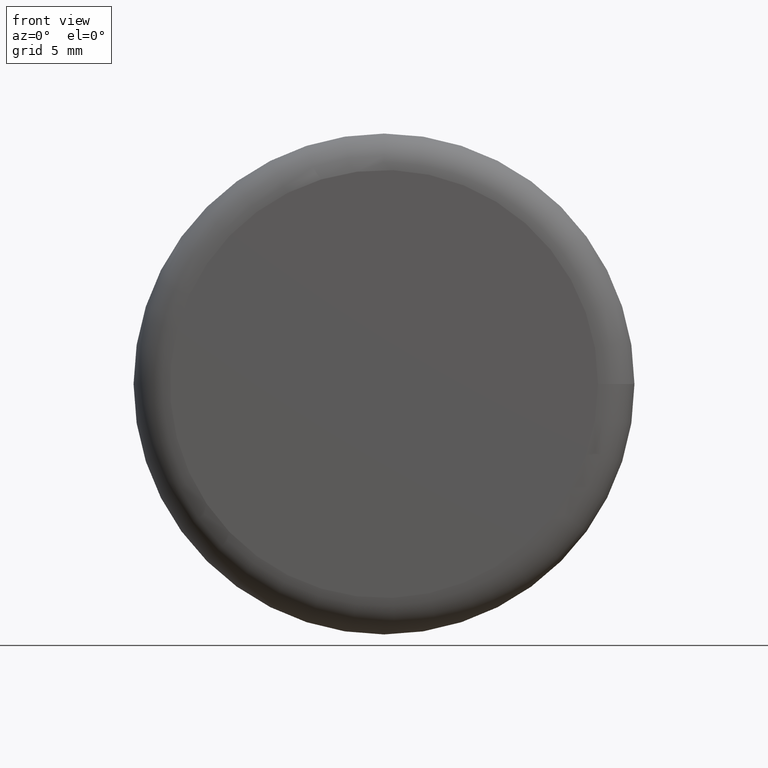
[diagram: clean part render]
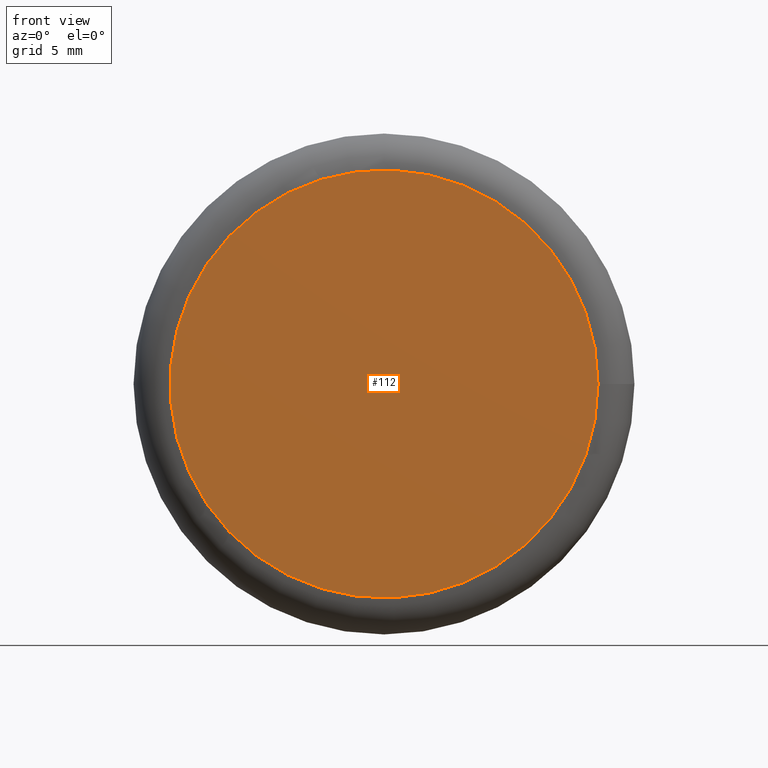
[diagram: same view with one face highlighted and labeled with its STEP entity id]
A machine part, front view. The second image highlights one B-rep face of the part: STEP entity #112.
In plain terms, the highlighted planar face has unit normal (-0, 1, 0).
Its self-contained STEP definition (entity closure, byte-faithful):
#112=ADVANCED_FACE('',(#173),#175,.F.);
#173=FACE_BOUND('',#174,.T.);
#174=EDGE_LOOP('',(#191));
#175=PLANE('',#176);
#176=AXIS2_PLACEMENT_3D('',#177,#178,#179);
#177=CARTESIAN_POINT('',(0.,0.,0.));
#178=DIRECTION('',(-0.,1.,0.));
#179=DIRECTION('',(1.,0.,0.));
#191=ORIENTED_EDGE('',*,*,#197,.F.);
#197=EDGE_CURVE('',#208,#208,#209,.T.);
#208=VERTEX_POINT('',#235);
#209=CIRCLE('',#236,11.75);
#235=CARTESIAN_POINT('',(11.75,0.,1.43895998899814E-015));
#236=AXIS2_PLACEMENT_3D('',#237,#238,#239);
#237=CARTESIAN_POINT('',(0.,0.,0.));
#238=DIRECTION('',(-0.,1.,0.));
#239=DIRECTION('',(1.,0.,0.));